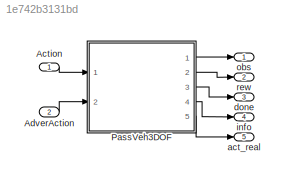
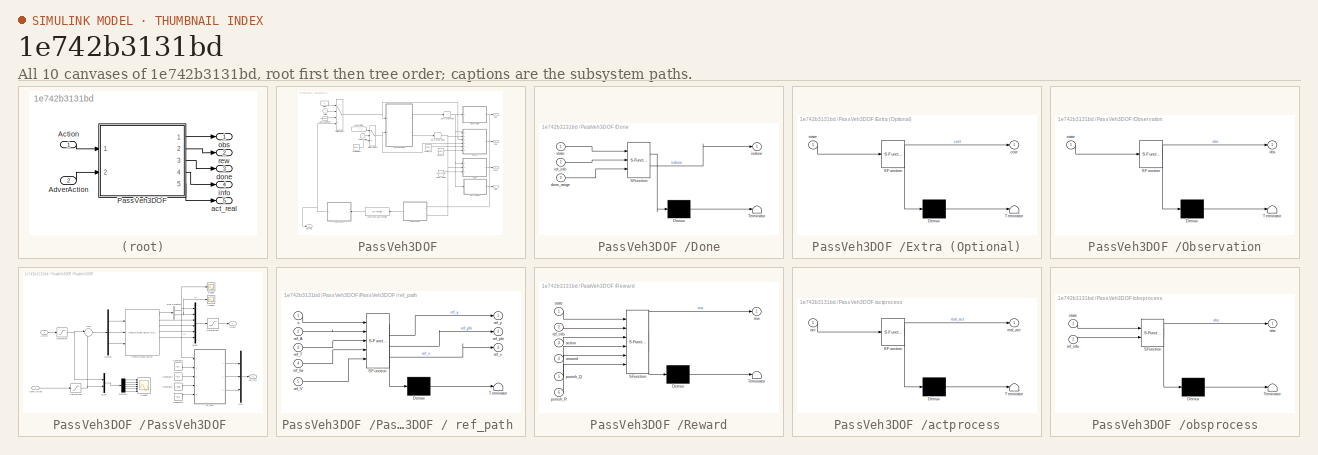
[diagram: thumbnail index - all 10 canvases of the model, root first then tree order]
MODEL slx_1e742b3131bd
KIND model
CONFIG AbsTol = auto
CONFIG EnableMultiTasking = off
CONFIG FixedStep = auto
CONFIG MaxStep = auto
CONFIG MinStep = auto
CONFIG RelTol = 1e-3
CONFIG SampleTimeConstraint = Unconstrained
CONFIG SolverName = FixedStepAuto
CONFIG StartTime = 0.0
CONFIG StopTime = 10.0
WORKSPACE source: mxarray member
WORKSPACE Cy_f1 = 128915.5
WORKSPACE Cy_r1 = 85943.6
WORKSPACE Izz1 = 1536.7
WORKSPACE a1 = 1.015
WORKSPACE a_max: Simulink.Parameter (value not decoded)
WORKSPACE a_min: Simulink.Parameter (value not decoded)
WORKSPACE adva_max: Simulink.Parameter (value not decoded)
WORKSPACE adva_min: Simulink.Parameter (value not decoded)
WORKSPACE b1 = 1.895
WORKSPACE done_range: Simulink.Parameter (value not decoded)
WORKSPACE h1 = 0.54
WORKSPACE noise_seed: Simulink.Parameter (value not decoded)
WORKSPACE punish_Q: Simulink.Parameter (value not decoded)
WORKSPACE punish_R: Simulink.Parameter (value not decoded)
WORKSPACE ref_A: Simulink.Parameter (value not decoded)
WORKSPACE ref_T: Simulink.Parameter (value not decoded)
WORKSPACE ref_V: Simulink.Parameter (value not decoded)
WORKSPACE ref_fai: Simulink.Parameter (value not decoded)
WORKSPACE sigma_f1 = 0.1
WORKSPACE sigma_r1 = 0.1
WORKSPACE x_ini: Simulink.Parameter (value not decoded)
WORKSPACE x_max: Simulink.Parameter (value not decoded)
WORKSPACE x_min: Simulink.Parameter (value not decoded)
BLOCK [Inport] Action
  PortDimensions = 3
BLOCK [Inport] AdverAction
  Port = 2
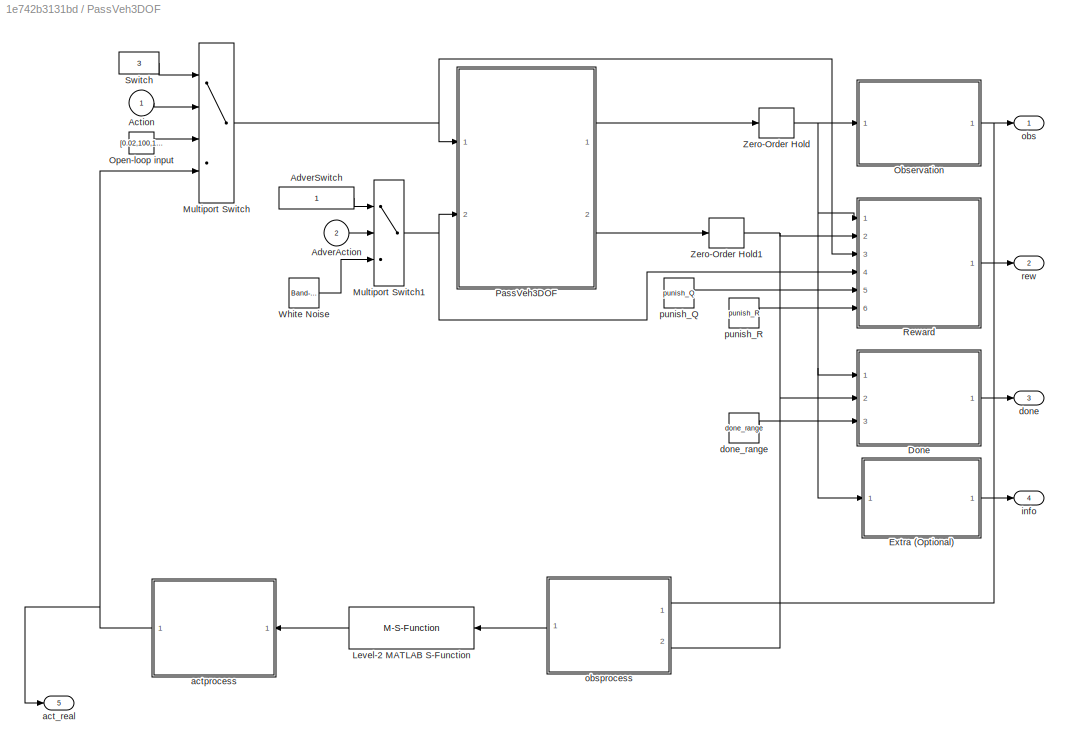
BLOCK [SubSystem] PassVeh3DOF 
  Ports = [2, 5]
  RequestExecContextInheritance = off
BLOCK [Inport] PassVeh3DOF /Action
BLOCK [Inport] PassVeh3DOF /AdverAction
  Port = 2
BLOCK [Constant] PassVeh3DOF /AdverSwitch
BLOCK [SubSystem] PassVeh3DOF /Done
  ErrorFcn = Stateflow.Translate.translate
  PermitHierarchicalResolution = ExplicitOnly
  Ports = [3, 1]
  RequestExecContextInheritance = off
  SFBlockType = MATLAB Function
  TreatAsAtomicUnit = on
BLOCK [Demux] PassVeh3DOF /Done/ Demux 
  Outputs = 1
  Ports = [1, 1]
BLOCK [S-Function] PassVeh3DOF /Done/ SFunction 
  EnableBusSupport = on
  FunctionName = sf_sfun
  PortCounts = [3 2]
  Ports = [3, 2]
  SFcnIsStateOwnerBlock = off
  SFunctionDeploymentMode = off
  Tag = Stateflow S-Function 1
BLOCK [Terminator] PassVeh3DOF /Done/ Terminator 
BLOCK [Inport] PassVeh3DOF /Done/done_range
  Port = 3
BLOCK [Outport] PassVeh3DOF /Done/isdone
BLOCK [Inport] PassVeh3DOF /Done/ref_info
  Port = 2
BLOCK [Inport] PassVeh3DOF /Done/state
BLOCK [SubSystem] PassVeh3DOF /Extra (Optional)
  ErrorFcn = Stateflow.Translate.translate
  PermitHierarchicalResolution = ExplicitOnly
  Ports = [1, 1]
  RequestExecContextInheritance = off
  SFBlockType = MATLAB Function
  TreatAsAtomicUnit = on
BLOCK [Demux] PassVeh3DOF /Extra (Optional)/ Demux 
  Outputs = 1
  Ports = [1, 1]
BLOCK [S-Function] PassVeh3DOF /Extra (Optional)/ SFunction 
  EnableBusSupport = on
  FunctionName = sf_sfun
  PortCounts = [1 2]
  Ports = [1, 2]
  SFcnIsStateOwnerBlock = off
  SFunctionDeploymentMode = off
  Tag = Stateflow S-Function 5
BLOCK [Terminator] PassVeh3DOF /Extra (Optional)/ Terminator 
BLOCK [Outport] PassVeh3DOF /Extra (Optional)/cost
BLOCK [Inport] PassVeh3DOF /Extra (Optional)/state
BLOCK [M-S-Function] PassVeh3DOF /Level-2 MATLAB S-Function
  FunctionName = gops_validation_bridge
  NameLocation = top
  Parameters = '<path>'
  Ports = [1, 1]
BLOCK [MultiPortSwitch] PassVeh3DOF /Multiport Switch
  InputSameDT = off
  Ports = [4, 1]
  SaturateOnIntegerOverflow = off
BLOCK [MultiPortSwitch] PassVeh3DOF /Multiport Switch1
  InputSameDT = off
  Inputs = 2
  Ports = [3, 1]
  SaturateOnIntegerOverflow = off
BLOCK [SubSystem] PassVeh3DOF /Observation
  ErrorFcn = Stateflow.Translate.translate
  PermitHierarchicalResolution = ExplicitOnly
  Ports = [1, 1]
  RequestExecContextInheritance = off
  SFBlockType = MATLAB Function
  TreatAsAtomicUnit = on
BLOCK [Demux] PassVeh3DOF /Observation/ Demux 
  Outputs = 1
  Ports = [1, 1]
BLOCK [S-Function] PassVeh3DOF /Observation/ SFunction 
  EnableBusSupport = on
  FunctionName = sf_sfun
  PortCounts = [1 2]
  Ports = [1, 2]
  SFcnIsStateOwnerBlock = off
  SFunctionDeploymentMode = off
  Tag = Stateflow S-Function 6
BLOCK [Terminator] PassVeh3DOF /Observation/ Terminator 
BLOCK [Outport] PassVeh3DOF /Observation/obs
BLOCK [Inport] PassVeh3DOF /Observation/state
BLOCK [Constant] PassVeh3DOF /Open-loop input
  Value = [0.02,100,100]
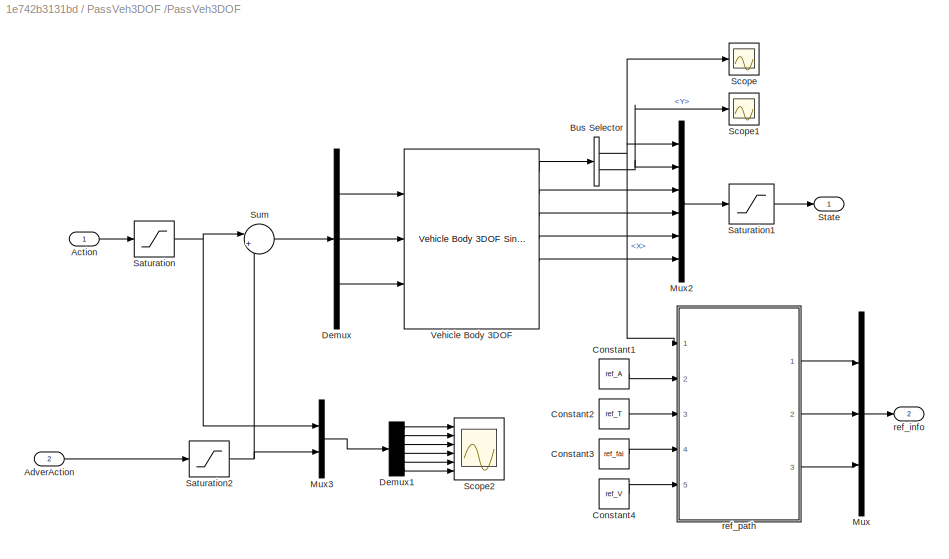
BLOCK [SubSystem] PassVeh3DOF /PassVeh3DOF 
  Ports = [2, 2]
  RequestExecContextInheritance = off
BLOCK [SubSystem] PassVeh3DOF /PassVeh3DOF / ref_path 
  ErrorFcn = Stateflow.Translate.translate
  PermitHierarchicalResolution = ExplicitOnly
  Ports = [5, 3]
  RequestExecContextInheritance = off
  SFBlockType = MATLAB Function
  TreatAsAtomicUnit = on
BLOCK [Demux] PassVeh3DOF /PassVeh3DOF / ref_path / Demux 
  Outputs = 1
  Ports = [1, 1]
BLOCK [S-Function] PassVeh3DOF /PassVeh3DOF / ref_path / SFunction 
  EnableBusSupport = on
  FunctionName = sf_sfun
  PortCounts = [5 4]
  Ports = [5, 4]
  SFcnIsStateOwnerBlock = off
  SFunctionDeploymentMode = off
  Tag = Stateflow S-Function 9
BLOCK [Terminator] PassVeh3DOF /PassVeh3DOF / ref_path / Terminator 
BLOCK [Inport] PassVeh3DOF /PassVeh3DOF / ref_path /ref_A
  Port = 2
BLOCK [Inport] PassVeh3DOF /PassVeh3DOF / ref_path /ref_T
  Port = 3
BLOCK [Inport] PassVeh3DOF /PassVeh3DOF / ref_path /ref_V
  Port = 5
BLOCK [Inport] PassVeh3DOF /PassVeh3DOF / ref_path /ref_fai
  Port = 4
BLOCK [Outport] PassVeh3DOF /PassVeh3DOF / ref_path /ref_phi
  Port = 2
BLOCK [Outport] PassVeh3DOF /PassVeh3DOF / ref_path /ref_v
  Port = 3
BLOCK [Outport] PassVeh3DOF /PassVeh3DOF / ref_path /ref_y
  VectorParamsAs1DForOutWhenUnconnected = off
BLOCK [Inport] PassVeh3DOF /PassVeh3DOF / ref_path /x
BLOCK [Inport] PassVeh3DOF /PassVeh3DOF /Action 
BLOCK [Inport] PassVeh3DOF /PassVeh3DOF /AdverAction
  Port = 2
BLOCK [BusSelector] PassVeh3DOF /PassVeh3DOF /Bus Selector
  OutputSignals = InertFrm.Cg.Disp.X,InertFrm.Cg.Disp.Y
  Ports = [1, 2]
BLOCK [Constant] PassVeh3DOF /PassVeh3DOF /Constant1
  Value = ref_A
BLOCK [Constant] PassVeh3DOF /PassVeh3DOF /Constant2
  Value = ref_T
BLOCK [Constant] PassVeh3DOF /PassVeh3DOF /Constant3
  Value = ref_fai
BLOCK [Constant] PassVeh3DOF /PassVeh3DOF /Constant4
  Value = ref_V
BLOCK [Demux] PassVeh3DOF /PassVeh3DOF /Demux
  Outputs = 3
  Ports = [1, 3]
BLOCK [Demux] PassVeh3DOF /PassVeh3DOF /Demux1
  Outputs = 6
  Ports = [1, 6]
BLOCK [Mux] PassVeh3DOF /PassVeh3DOF /Mux
  DisplayOption = bar
  Inputs = 3
  Ports = [3, 1]
BLOCK [Mux] PassVeh3DOF /PassVeh3DOF /Mux2
  DisplayOption = bar
  Inputs = 6
  Ports = [6, 1]
BLOCK [Mux] PassVeh3DOF /PassVeh3DOF /Mux3
  DisplayOption = bar
  Inputs = 2
  Ports = [2, 1]
BLOCK [Saturate] PassVeh3DOF /PassVeh3DOF /Saturation
  LowerLimit = a_min
  UpperLimit = a_max
BLOCK [Saturate] PassVeh3DOF /PassVeh3DOF /Saturation1
  LowerLimit = x_min
  UpperLimit = x_max
BLOCK [Saturate] PassVeh3DOF /PassVeh3DOF /Saturation2
  LowerLimit = adva_min
  UpperLimit = adva_max
BLOCK [Scope] PassVeh3DOF /PassVeh3DOF /Scope
  Floating = off
  NumInputPorts = 1
  Ports = [1]
  ScopeSpecificationString = Simulink.scopes.TimeScopeBlockCfg('CurrentConfiguration', extmgr.ConfigurationSet(extmgr.Configuration('Core','General UI',true),extmgr.Configuration('Core','Source UI',true),extmgr.Configuration('Sources','WiredSimulink',true,'DataLoggingVariableName','ScopeData1'),extmgr.Configuration('Visuals','Time Domain',true,'SerializedDisplays',{struct('MinYLimReal','-15.85608','MaxYLimReal','142.70475','Y...<+1372ch>
BLOCK [Scope] PassVeh3DOF /PassVeh3DOF /Scope1
  Floating = off
  NumInputPorts = 1
  Ports = [1]
  ScopeSpecificationString = Simulink.scopes.TimeScopeBlockCfg('CurrentConfiguration', extmgr.ConfigurationSet(extmgr.Configuration('Core','General UI',true),extmgr.Configuration('Core','Source UI',true),extmgr.Configuration('Sources','WiredSimulink',true,'DataLoggingVariableName','ScopeData2'),extmgr.Configuration('Visuals','Time Domain',true,'SerializedDisplays',{struct('MinYLimReal','0.09','MaxYLimReal','0.11','YLabelReal'...<+1336ch>
BLOCK [Scope] PassVeh3DOF /PassVeh3DOF /Scope2
  Floating = off
  NumInputPorts = 6
  Ports = [6]
  ScopeSpecificationString = Simulink.scopes.TimeScopeBlockCfg('CurrentConfiguration', extmgr.ConfigurationSet(extmgr.Configuration('Core','General UI',true),extmgr.Configuration('Core','Source UI',true),extmgr.Configuration('Sources','WiredSimulink',true,'DataLoggingVariableName','ScopeData1'),extmgr.Configuration('Visuals','Time Domain',true,'SerializedDisplays',{struct('MinYLimReal','0.01','MaxYLimReal','0.03','YLabelReal'...<+4811ch>
BLOCK [Outport] PassVeh3DOF /PassVeh3DOF /State
  VectorParamsAs1DForOutWhenUnconnected = off
BLOCK [Sum] PassVeh3DOF /PassVeh3DOF /Sum
  Inputs = |++
  Ports = [2, 1]
BLOCK [Reference] PassVeh3DOF /PassVeh3DOF /Vehicle Body 3DOF   REF=autolibshared/Vehicle Body 3DOF Single Track
  Ports = [3, 7]
  SourceBlock = autolibshared/Vehicle Body 3DOF Single Track
  SourceProductBaseCode = PW,DR,MT,UV,VE
  SourceType = Vehicle Body 3DOF Lateral
BLOCK [Outport] PassVeh3DOF /PassVeh3DOF /ref_info
  Port = 2
  VectorParamsAs1DForOutWhenUnconnected = off
BLOCK [SubSystem] PassVeh3DOF /Reward
  ErrorFcn = Stateflow.Translate.translate
  PermitHierarchicalResolution = ExplicitOnly
  Ports = [6, 1]
  RequestExecContextInheritance = off
  SFBlockType = MATLAB Function
  TreatAsAtomicUnit = on
BLOCK [Demux] PassVeh3DOF /Reward/ Demux 
  Outputs = 1
  Ports = [1, 1]
BLOCK [S-Function] PassVeh3DOF /Reward/ SFunction 
  EnableBusSupport = on
  FunctionName = sf_sfun
  PortCounts = [6 2]
  Ports = [6, 2]
  SFcnIsStateOwnerBlock = off
  SFunctionDeploymentMode = off
  Tag = Stateflow S-Function 7
BLOCK [Terminator] PassVeh3DOF /Reward/ Terminator 
BLOCK [Inport] PassVeh3DOF /Reward/action
  Port = 3
BLOCK [Inport] PassVeh3DOF /Reward/punish_Q
  Port = 5
BLOCK [Inport] PassVeh3DOF /Reward/punish_R
  Port = 6
BLOCK [Inport] PassVeh3DOF /Reward/ref_info
  Port = 2
BLOCK [Outport] PassVeh3DOF /Reward/rew
BLOCK [Inport] PassVeh3DOF /Reward/state
BLOCK [Inport] PassVeh3DOF /Reward/unused
  Port = 4
BLOCK [Constant] PassVeh3DOF /Switch
  Value = 3
BLOCK [Reference] PassVeh3DOF /White Noise  REF=simulink/Sources/Band-Limited
White Noise
  Ports = [0, 1]
  SourceBlock = simulink/Sources/Band-Limited\nWhite Noise
  SourceProductBaseCode = SL
  SourceType = Band-Limited White Noise.
BLOCK [ZeroOrderHold] PassVeh3DOF /Zero-Order Hold
  SampleTime = -1
BLOCK [ZeroOrderHold] PassVeh3DOF /Zero-Order Hold1
  SampleTime = -1
BLOCK [Outport] PassVeh3DOF /act_real
  Port = 5
BLOCK [SubSystem] PassVeh3DOF /actprocess
  ErrorFcn = Stateflow.Translate.translate
  NameLocation = top
  PermitHierarchicalResolution = ExplicitOnly
  Ports = [1, 1]
  RequestExecContextInheritance = off
  SFBlockType = MATLAB Function
  TreatAsAtomicUnit = on
BLOCK [Demux] PassVeh3DOF /actprocess/ Demux 
  Outputs = 1
  Ports = [1, 1]
BLOCK [S-Function] PassVeh3DOF /actprocess/ SFunction 
  EnableBusSupport = on
  FunctionName = sf_sfun
  PortCounts = [1 2]
  Ports = [1, 2]
  SFcnIsStateOwnerBlock = off
  SFunctionDeploymentMode = off
  Tag = Stateflow S-Function 4
BLOCK [Terminator] PassVeh3DOF /actprocess/ Terminator 
BLOCK [Inport] PassVeh3DOF /actprocess/act
BLOCK [Outport] PassVeh3DOF /actprocess/real_act
BLOCK [Outport] PassVeh3DOF /done
  Port = 3
BLOCK [Constant] PassVeh3DOF /done_range
  Value = done_range
BLOCK [Outport] PassVeh3DOF /info
  Port = 4
BLOCK [Outport] PassVeh3DOF /obs
BLOCK [SubSystem] PassVeh3DOF /obsprocess
  ErrorFcn = Stateflow.Translate.translate
  NameLocation = top
  PermitHierarchicalResolution = ExplicitOnly
  Ports = [2, 1]
  RequestExecContextInheritance = off
  SFBlockType = MATLAB Function
  TreatAsAtomicUnit = on
BLOCK [Demux] PassVeh3DOF /obsprocess/ Demux 
  Outputs = 1
  Ports = [1, 1]
BLOCK [S-Function] PassVeh3DOF /obsprocess/ SFunction 
  EnableBusSupport = on
  FunctionName = sf_sfun
  PortCounts = [2 2]
  Ports = [2, 2]
  SFcnIsStateOwnerBlock = off
  SFunctionDeploymentMode = off
  Tag = Stateflow S-Function 2
BLOCK [Terminator] PassVeh3DOF /obsprocess/ Terminator 
BLOCK [Outport] PassVeh3DOF /obsprocess/obs
BLOCK [Inport] PassVeh3DOF /obsprocess/ref_info
  Port = 2
BLOCK [Inport] PassVeh3DOF /obsprocess/state
BLOCK [Constant] PassVeh3DOF /punish_Q
  Value = punish_Q
BLOCK [Constant] PassVeh3DOF /punish_R
  Value = punish_R
BLOCK [Outport] PassVeh3DOF /rew
  Port = 2
BLOCK [Outport] act_real
  Port = 5
BLOCK [Outport] done
  Port = 3
BLOCK [Outport] info
  Port = 4
BLOCK [Outport] obs
BLOCK [Outport] rew
  Port = 2
LINE Action:1 -> PassVeh3DOF :1
LINE AdverAction:1 -> PassVeh3DOF :2
LINE PassVeh3DOF /Action:1 -> PassVeh3DOF /Multiport Switch:2
LINE PassVeh3DOF /AdverAction:1 -> PassVeh3DOF /Multiport Switch1:2
LINE PassVeh3DOF /AdverSwitch:1 -> PassVeh3DOF /Multiport Switch1:1
LINE PassVeh3DOF /Done:1 -> PassVeh3DOF /done:1
LINE PassVeh3DOF /Extra (Optional):1 -> PassVeh3DOF /info:1
LINE PassVeh3DOF /Level-2 MATLAB S-Function:1 -> PassVeh3DOF /actprocess:1
NET PassVeh3DOF /Multiport Switch1:1 -> PassVeh3DOF /PassVeh3DOF :2, PassVeh3DOF /Reward:4
NET PassVeh3DOF /Multiport Switch:1 -> PassVeh3DOF /PassVeh3DOF :1, PassVeh3DOF /Reward:3
NET PassVeh3DOF /Observation:1 -> PassVeh3DOF /obs:1, PassVeh3DOF /obsprocess:1
LINE PassVeh3DOF /Open-loop input:1 -> PassVeh3DOF /Multiport Switch:3
LINE PassVeh3DOF /PassVeh3DOF / ref_path :1 -> PassVeh3DOF /PassVeh3DOF /Mux:1
LINE PassVeh3DOF /PassVeh3DOF / ref_path :2 -> PassVeh3DOF /PassVeh3DOF /Mux:2
LINE PassVeh3DOF /PassVeh3DOF / ref_path :3 -> PassVeh3DOF /PassVeh3DOF /Mux:3
LINE PassVeh3DOF /PassVeh3DOF /Action :1 -> PassVeh3DOF /PassVeh3DOF /Saturation:1
LINE PassVeh3DOF /PassVeh3DOF /AdverAction:1 -> PassVeh3DOF /PassVeh3DOF /Saturation2:1
NET PassVeh3DOF /PassVeh3DOF /Bus Selector:1 -> PassVeh3DOF /PassVeh3DOF / ref_path :1, PassVeh3DOF /PassVeh3DOF /Mux2:1, PassVeh3DOF /PassVeh3DOF /Scope:1
NET PassVeh3DOF /PassVeh3DOF /Bus Selector:2 -> PassVeh3DOF /PassVeh3DOF /Mux2:2, PassVeh3DOF /PassVeh3DOF /Scope1:1
LINE PassVeh3DOF /PassVeh3DOF /Constant1:1 -> PassVeh3DOF /PassVeh3DOF / ref_path :2
LINE PassVeh3DOF /PassVeh3DOF /Constant2:1 -> PassVeh3DOF /PassVeh3DOF / ref_path :3
LINE PassVeh3DOF /PassVeh3DOF /Constant3:1 -> PassVeh3DOF /PassVeh3DOF / ref_path :4
LINE PassVeh3DOF /PassVeh3DOF /Constant4:1 -> PassVeh3DOF /PassVeh3DOF / ref_path :5
LINE PassVeh3DOF /PassVeh3DOF /Demux1:1 -> PassVeh3DOF /PassVeh3DOF /Scope2:1
LINE PassVeh3DOF /PassVeh3DOF /Demux1:2 -> PassVeh3DOF /PassVeh3DOF /Scope2:2
LINE PassVeh3DOF /PassVeh3DOF /Demux1:3 -> PassVeh3DOF /PassVeh3DOF /Scope2:3
LINE PassVeh3DOF /PassVeh3DOF /Demux1:4 -> PassVeh3DOF /PassVeh3DOF /Scope2:4
LINE PassVeh3DOF /PassVeh3DOF /Demux1:5 -> PassVeh3DOF /PassVeh3DOF /Scope2:5
LINE PassVeh3DOF /PassVeh3DOF /Demux1:6 -> PassVeh3DOF /PassVeh3DOF /Scope2:6
LINE PassVeh3DOF /PassVeh3DOF /Demux:1 -> PassVeh3DOF /PassVeh3DOF /Vehicle Body 3DOF :1
LINE PassVeh3DOF /PassVeh3DOF /Demux:2 -> PassVeh3DOF /PassVeh3DOF /Vehicle Body 3DOF :2
LINE PassVeh3DOF /PassVeh3DOF /Demux:3 -> PassVeh3DOF /PassVeh3DOF /Vehicle Body 3DOF :3
LINE PassVeh3DOF /PassVeh3DOF /Mux2:1 -> PassVeh3DOF /PassVeh3DOF /Saturation1:1
LINE PassVeh3DOF /PassVeh3DOF /Mux3:1 -> PassVeh3DOF /PassVeh3DOF /Demux1:1
LINE PassVeh3DOF /PassVeh3DOF /Mux:1 -> PassVeh3DOF /PassVeh3DOF /ref_info:1
LINE PassVeh3DOF /PassVeh3DOF /Saturation1:1 -> PassVeh3DOF /PassVeh3DOF /State:1
NET PassVeh3DOF /PassVeh3DOF /Saturation2:1 -> PassVeh3DOF /PassVeh3DOF /Mux3:2, PassVeh3DOF /PassVeh3DOF /Sum:2
NET PassVeh3DOF /PassVeh3DOF /Saturation:1 -> PassVeh3DOF /PassVeh3DOF /Mux3:1, PassVeh3DOF /PassVeh3DOF /Sum:1
LINE PassVeh3DOF /PassVeh3DOF /Sum:1 -> PassVeh3DOF /PassVeh3DOF /Demux:1
LINE PassVeh3DOF /PassVeh3DOF /Vehicle Body 3DOF :1 -> PassVeh3DOF /PassVeh3DOF /Bus Selector:1
LINE PassVeh3DOF /PassVeh3DOF /Vehicle Body 3DOF :2 -> PassVeh3DOF /PassVeh3DOF /Mux2:3
LINE PassVeh3DOF /PassVeh3DOF /Vehicle Body 3DOF :3 -> PassVeh3DOF /PassVeh3DOF /Mux2:4
LINE PassVeh3DOF /PassVeh3DOF /Vehicle Body 3DOF :4 -> PassVeh3DOF /PassVeh3DOF /Mux2:5
LINE PassVeh3DOF /PassVeh3DOF /Vehicle Body 3DOF :5 -> PassVeh3DOF /PassVeh3DOF /Mux2:6
LINE PassVeh3DOF /PassVeh3DOF :1 -> PassVeh3DOF /Zero-Order Hold:1
LINE PassVeh3DOF /PassVeh3DOF :2 -> PassVeh3DOF /Zero-Order Hold1:1
LINE PassVeh3DOF /Reward:1 -> PassVeh3DOF /rew:1
LINE PassVeh3DOF /Switch:1 -> PassVeh3DOF /Multiport Switch:1
LINE PassVeh3DOF /White Noise:1 -> PassVeh3DOF /Multiport Switch1:3
NET PassVeh3DOF /Zero-Order Hold1:1 -> PassVeh3DOF /Done:2, PassVeh3DOF /Reward:2, PassVeh3DOF /obsprocess:2
NET PassVeh3DOF /Zero-Order Hold:1 -> PassVeh3DOF /Done:1, PassVeh3DOF /Extra (Optional):1, PassVeh3DOF /Observation:1, PassVeh3DOF /Reward:1
NET PassVeh3DOF /actprocess:1 -> PassVeh3DOF /Multiport Switch:4, PassVeh3DOF /act_real:1
LINE PassVeh3DOF /done_range:1 -> PassVeh3DOF /Done:3
LINE PassVeh3DOF /obsprocess:1 -> PassVeh3DOF /Level-2 MATLAB S-Function:1
LINE PassVeh3DOF /punish_Q:1 -> PassVeh3DOF /Reward:5
LINE PassVeh3DOF /punish_R:1 -> PassVeh3DOF /Reward:6
LINE PassVeh3DOF :1 -> obs:1
LINE PassVeh3DOF :2 -> rew:1
LINE PassVeh3DOF :3 -> done:1
LINE PassVeh3DOF :4 -> info:1
LINE PassVeh3DOF :5 -> act_real:1
note: NET lines group one-source signal fan-out (src -> all destinations, sorted); 1:1 wires keep LINE
CHART PassVeh3DOF
/Done states=1 transitions=1
  STATE_LABEL 'eML_blk_kernel()'
  STATE_LABEL 'SCRIPT:\nfunction isdone = fun_done(state, ref_info, done_range)\nfalse = abs(state(2)-ref_info(1))>done_range(1) ...\n        || abs(state(3)-ref_info(3))>done_range(2) ...\n        || abs(state(5)-ref_info(2))>done_range(3);\nisdone = false;\n'
CHART PassVeh3DOF
/obsprocess states=1 transitions=1
  STATE_LABEL 'eML_blk_kernel()'
  STATE_LABEL 'SCRIPT:\nfunction obs = fun_done(state, ref_info)\n    ref_A = [0.3, 0.8, 1.5];\n    ref_T = [100, 200, 400];\n    ref_fai= [0, pi/ 6, pi/3];\n    delta_t = 0.01;\n    ref_v = ref_info(3);\n    obs = zeros(6,1);\n    obs(1) = state(1)*0.001;\n    obs(2) = state(2) -ref_info(1);\n    obs(3) = state(3) -ref_info(3);\n    obs(4) = state(4);\n    obs(5) = (state(5)- ref_info(2))*2.4;\n    obs(6) = state(6)*2;\n%   ...<+229ch>'
CHART PassVeh3DOF
/actprocess states=1 transitions=1
  STATE_LABEL 'eML_blk_kernel()'
  STATE_LABEL 'SCRIPT:\nfunction real_act = fun_act(act)\nreal_act =act;\nreal_act(1) = act(1)/10;\nreal_act(2) = act(2)*1000;\nreal_act(3) = act(3)*1000;\nend\n'
CHART PassVeh3DOF
/Extra (Optional) states=1 transitions=1
  STATE_LABEL 'eML_blk_kernel()'
  STATE_LABEL 'SCRIPT:\nfunction cost = fun_extra(state)\ncost = 0;'
CHART PassVeh3DOF
/Observation states=1 transitions=1
  STATE_LABEL 'eML_blk_kernel()'
  STATE_LABEL 'SCRIPT:\nfunction obs = fun_obs(state)\nobs = state;\n'
CHART PassVeh3DOF
/Reward states=1 transitions=1
  STATE_LABEL 'eML_blk_kernel()'
  STATE_LABEL 'SCRIPT:\nfunction rew = fun_rew(state, ref_info, action, ~,  punish_Q, punish_R)\nrew = punish_Q(1)*(state(2)-ref_info(1))^2 + punish_Q(2)*(state(3)-ref_info(3))^2 ...\n    + punish_Q(3)*(state(5)-ref_info(2))^2 + punish_Q(4)*state(6)^2 ...\n    + punish_R(1)*(action(1))^2 + punish_R(2)*(action(2))^2 + punish_R(3)*(action(3))^2;\nrew = -rew;\n\n'
CHART PassVeh3DOF
/PassVeh3DOF
/ ref_path
 states=1 transitions=1
  STATE_LABEL 'eML_blk_kernel()'
  STATE_LABEL 'SCRIPT:\nfunction [ref_y, ref_phi, ref_v]= fcn(x, ref_A, ref_T, ref_fai, ref_V)\nref_y = ref_A(1)*sin(2*pi/ref_T(1)*x + ref_fai(1)) + ref_A(2)*sin(2*pi/ref_T(2)*x + ref_fai(2)) + ref_A(3)*sin(2*pi/ref_T(3)*x + ref_fai(3));\nref_phi_k = ref_A(1)*2*pi/ref_T(1)*cos(2*pi/ref_T(1)*x + ref_fai(1)) + ref_A(2)*2*pi/ref_T(2)*cos(2*pi/ref_T(2)*x + ref_fai(2)) + ref_A(3)*2*pi/ref_T(3)*cos(2*pi/ref_T(3)*x + ref_...<+50ch>'
CHART  states=0 transitions=0
CHART  states=0 transitions=0
CHART  states=0 transitions=0
CHART  states=0 transitions=0
CHART  states=0 transitions=0
CHART  states=0 transitions=0
CHART  states=0 transitions=0
note: 1 file-system path scrubbed to <path> (not preserved elsewhere — flat text is the only slx artifact)
